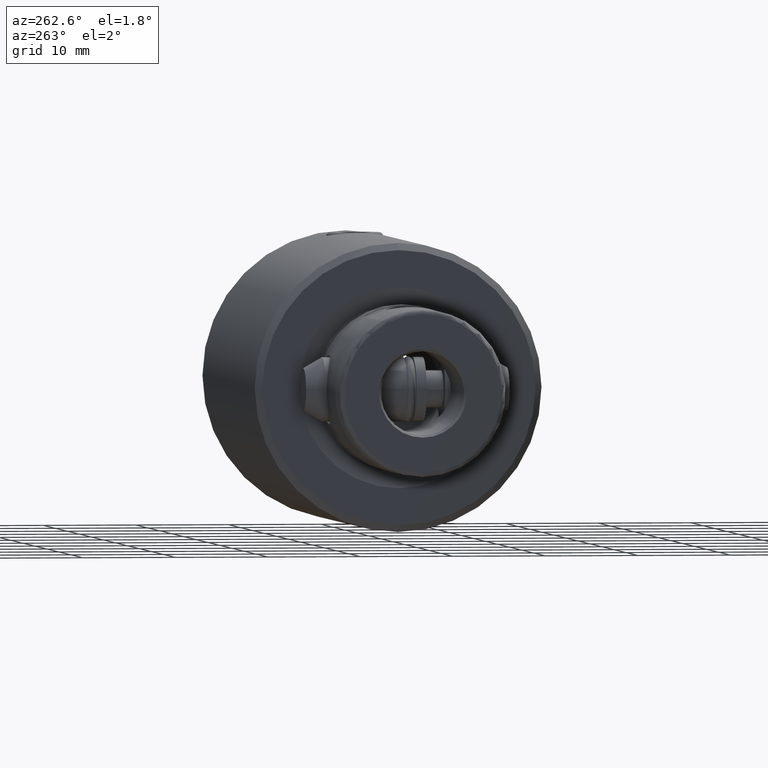
[diagram: clean part render]
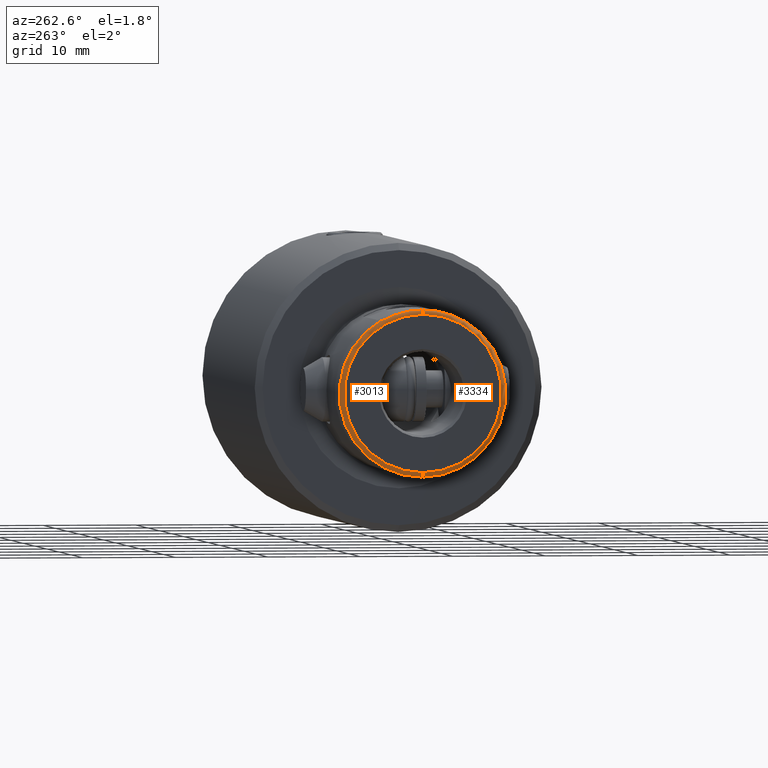
[diagram: same view with one multi-face feature highlighted, each face labeled with its STEP entity id]
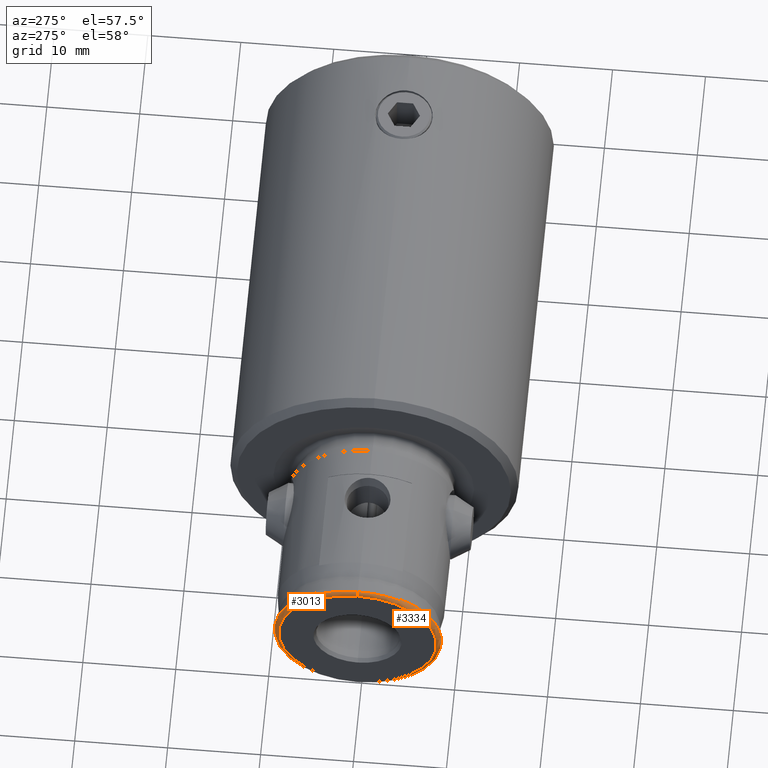
[diagram: same view with one multi-face feature highlighted, each face labeled with its STEP entity id]
A machine part, auxiliary view. The highlighted faces form ONE feature: a constant-radius fillet chain: 2 tangent blend faces with common blend radius 0.5 mm. The faces share edges in the B-rep.
A second angle (auxiliary view) of the same feature is appended — it is thin or edge-on in the first view.
Their STEP definitions:
[1] entity #3013 (Torus):
#7 = EDGE_CURVE ( 'NONE', #2380, #2242, #2147, .T. ) ;
#130 = CARTESIAN_POINT ( 'NONE',  ( -8.499999999999998224, -9.726274574535265613E-15, 65.00000000000000000 ) ) ;
#139 = CIRCLE ( 'NONE', #2624, 9.000000000000051514 ) ;
#213 = DIRECTION ( 'NONE',  ( 0.0000000000000000000, -1.723881454251954269E-16, 1.000000000000000000 ) ) ;
#329 = CARTESIAN_POINT ( 'NONE',  ( 8.500000000000044409, -1.147291893263172090E-14, 64.50000000000000000 ) ) ;
#418 = ORIENTED_EDGE ( 'NONE', *, *, #7, .T. ) ;
#509 = CARTESIAN_POINT ( 'NONE',  ( 8.500000000000044409, -1.155911300534431693E-14, 65.00000000000000000 ) ) ;
#544 = CARTESIAN_POINT ( 'NONE',  ( 8.543483812242556041, 2.702611785700421709, 64.71319679735238140 ) ) ;
#573 = DIRECTION ( 'NONE',  ( 1.888135635086342558E-20, -1.723881454251955994E-16, 1.000000000000000000 ) ) ;
#718 = CIRCLE ( 'NONE', #883, 8.500000000000044409 ) ;
#797 = AXIS2_PLACEMENT_3D ( 'NONE', #1883, #1174, #3695 ) ;
#850 = CARTESIAN_POINT ( 'NONE',  ( 8.117054869518128157, 3.801924875169973905, 64.70807553930579559 ) ) ;
#883 = AXIS2_PLACEMENT_3D ( 'NONE', #1272, #2070, #4549 ) ;
#897 = CARTESIAN_POINT ( 'NONE',  ( 7.744228634059989069, 4.500000000000010658, 64.70345613903400306 ) ) ;
#919 = CARTESIAN_POINT ( 'NONE',  ( 7.794228634059932048, 4.500000000000014211, 64.53545904333770977 ) ) ;
#936 = CARTESIAN_POINT ( 'NONE',  ( 7.772759222764672238, 4.500000000000013323, 64.63956420402892888 ) ) ;
#977 = EDGE_CURVE ( 'NONE', #3349, #3486, #3710, .T. ) ;
#1174 = DIRECTION ( 'NONE',  ( 1.888135635086342558E-20, -1.723881454251955994E-16, 1.000000000000000000 ) ) ;
#1272 = CARTESIAN_POINT ( 'NONE',  ( 1.227288162806122705E-18, -1.120522945263771041E-14, 65.00000000000000000 ) ) ;
#1293 = DIRECTION ( 'NONE',  ( 1.000000000000000000, -4.163335914195350679E-17, 0.0000000000000000000 ) ) ;
#1452 = EDGE_CURVE ( 'NONE', #4220, #3349, #2630, .T. ) ;
#1462 = CARTESIAN_POINT ( 'NONE',  ( 7.744228634059989069, 4.500000000000010658, 64.70345613903400306 ) ) ;
#1530 = ORIENTED_EDGE ( 'NONE', *, *, #3177, .F. ) ;
#1717 = CARTESIAN_POINT ( 'NONE',  ( -9.000000000000051514, -9.642153028414908008E-15, 64.50000000000000000 ) ) ;
#1883 = CARTESIAN_POINT ( 'NONE',  ( 1.217847484630691260E-18, -1.111903537992511439E-14, 64.50000000000000000 ) ) ;
#1954 = CARTESIAN_POINT ( 'NONE',  ( 8.923989505416782819, 0.7883385530806144015, 64.71764565955500359 ) ) ;
#1995 = CARTESIAN_POINT ( 'NONE',  ( 1.217847484630691260E-18, -1.111903537992511439E-14, 64.50000000000000000 ) ) ;
#2003 = CARTESIAN_POINT ( 'NONE',  ( 7.760294299790399641, 4.500000000000013323, 64.67227302975570069 ) ) ;
#2038 = CARTESIAN_POINT ( 'NONE',  ( -8.500000000000044409, -9.724202047943252807E-15, 64.50000000000000000 ) ) ;
#2070 = DIRECTION ( 'NONE',  ( 1.888135635086342558E-20, -1.723881454251955994E-16, 1.000000000000000000 ) ) ;
#2093 = ORIENTED_EDGE ( 'NONE', *, *, #2462, .F. ) ;
#2108 = CARTESIAN_POINT ( 'NONE',  ( 8.949999999999999289, 2.684290431672881742E-11, 64.71794494717703117 ) ) ;
#2147 = CIRCLE ( 'NONE', #3527, 0.5000000000000004441 ) ;
#2189 = EDGE_LOOP ( 'NONE', ( #4264, #418, #2093, #1530, #2718, #2494 ) ) ;
#2242 = VERTEX_POINT ( 'NONE', #130 ) ;
#2269 = CARTESIAN_POINT ( 'NONE',  ( 8.949999999998832223, 0.3916268937879325285, 64.71794494717704538 ) ) ;
#2378 = DIRECTION ( 'NONE',  ( 1.640980390566888090E-16, 1.000000000000000000, 1.723881454251955994E-16 ) ) ;
#2380 = VERTEX_POINT ( 'NONE', #1717 ) ;
#2462 = EDGE_CURVE ( 'NONE', #3788, #2242, #718, .T. ) ;
#2494 = ORIENTED_EDGE ( 'NONE', *, *, #1452, .F. ) ;
#2624 = AXIS2_PLACEMENT_3D ( 'NONE', #1995, #573, #1293 ) ;
#2630 = B_SPLINE_CURVE_WITH_KNOTS ( 'NONE', 3,
 ( #4131, #919, #2724, #936, #2003, #3070 ),
 .UNSPECIFIED., .F., .F.,
 ( 4, 2, 4 ),
 ( 0.003313627888758041533, 0.003418567564405850141, 0.003523507240053658750 ),
 .UNSPECIFIED. ) ;
#2637 = CARTESIAN_POINT ( 'NONE',  ( 8.949999999999999289, 2.684290431672881742E-11, 64.71794494717703117 ) ) ;
#2718 = ORIENTED_EDGE ( 'NONE', *, *, #977, .F. ) ;
#2724 = CARTESIAN_POINT ( 'NONE',  ( 7.789848050558762615, 4.500000000000014211, 64.57082413517959196 ) ) ;
#2783 = DIRECTION ( 'NONE',  ( 0.0000000000000000000, 1.723881454251954269E-16, -1.000000000000000000 ) ) ;
#2844 = DIRECTION ( 'NONE',  ( -4.163335914195348213E-17, -1.000000000000000000, -1.723881454251955994E-16 ) ) ;
#2924 = CARTESIAN_POINT ( 'NONE',  ( 7.794228634059990668, 4.500000000000010658, 64.50000000000000000 ) ) ;
#3013 = ADVANCED_FACE ( 'NONE', ( #4163 ), #3241, .T. ) ;
#3070 = CARTESIAN_POINT ( 'NONE',  ( 7.744228634059989069, 4.500000000000010658, 64.70345613903400306 ) ) ;
#3131 = CIRCLE ( 'NONE', #3433, 0.5000000000000004441 ) ;
#3177 = EDGE_CURVE ( 'NONE', #3486, #3788, #3131, .T. ) ;
#3241 = TOROIDAL_SURFACE ( 'NONE', #797, 8.499999999999998224, 0.5000000000000000000 ) ;
#3340 = CARTESIAN_POINT ( 'NONE',  ( 7.941985090305718309, 4.157475770257607728, 64.70593437811906767 ) ) ;
#3349 = VERTEX_POINT ( 'NONE', #1462 ) ;
#3374 = CARTESIAN_POINT ( 'NONE',  ( 8.821328666272730601, 1.566362988764559150, 64.71645551656496309 ) ) ;
#3433 = AXIS2_PLACEMENT_3D ( 'NONE', #329, #2844, #2783 ) ;
#3486 = VERTEX_POINT ( 'NONE', #2108 ) ;
#3527 = AXIS2_PLACEMENT_3D ( 'NONE', #2038, #2378, #213 ) ;
#3695 = DIRECTION ( 'NONE',  ( 1.000000000000000000, -4.163335914195351911E-17, -1.888135635087060568E-20 ) ) ;
#3710 = B_SPLINE_CURVE_WITH_KNOTS ( 'NONE', 3,
 ( #897, #3340, #850, #4034, #544, #4061, #3374, #1954, #2269, #2637 ),
 .UNSPECIFIED., .F., .F.,
 ( 4, 2, 2, 2, 4 ),
 ( 2.305887004527156561E-07, 0.001184955913991415227, 0.002369681239282377984, 0.003554406564573339873, 0.004739131889864301762 ),
 .UNSPECIFIED. ) ;
#3788 = VERTEX_POINT ( 'NONE', #509 ) ;
#3828 = EDGE_CURVE ( 'NONE', #4220, #2380, #139, .T. ) ;
#4034 = CARTESIAN_POINT ( 'NONE',  ( 8.418210828813476709, 3.073243133388920967, 64.71171158814941293 ) ) ;
#4061 = CARTESIAN_POINT ( 'NONE',  ( 8.745044211965932845, 1.949172081948179924, 64.71556891871901485 ) ) ;
#4131 = CARTESIAN_POINT ( 'NONE',  ( 7.794228634059990668, 4.500000000000010658, 64.50000000000000000 ) ) ;
#4163 = FACE_OUTER_BOUND ( 'NONE', #2189, .T. ) ;
#4220 = VERTEX_POINT ( 'NONE', #2924 ) ;
#4264 = ORIENTED_EDGE ( 'NONE', *, *, #3828, .T. ) ;
#4549 = DIRECTION ( 'NONE',  ( 1.000000000000000000, -4.163335914195346364E-17, 0.0000000000000000000 ) ) ;
[2] entity #3334 (Torus):
#7 = EDGE_CURVE ( 'NONE', #2380, #2242, #2147, .T. ) ;
#106 = EDGE_CURVE ( 'NONE', #2187, #1019, #1959, .T. ) ;
#130 = CARTESIAN_POINT ( 'NONE',  ( -8.499999999999998224, -9.726274574535265613E-15, 65.00000000000000000 ) ) ;
#213 = DIRECTION ( 'NONE',  ( 0.0000000000000000000, -1.723881454251954269E-16, 1.000000000000000000 ) ) ;
#298 = CARTESIAN_POINT ( 'NONE',  ( 1.227288162806122705E-18, -1.120522945263771041E-14, 65.00000000000000000 ) ) ;
#329 = CARTESIAN_POINT ( 'NONE',  ( 8.500000000000044409, -1.147291893263172090E-14, 64.50000000000000000 ) ) ;
#356 = CARTESIAN_POINT ( 'NONE',  ( 7.744228634059989069, -4.500000000000030198, 64.70345613904952131 ) ) ;
#368 = CARTESIAN_POINT ( 'NONE',  ( 1.217847484630691260E-18, -1.111903537992511439E-14, 64.50000000000000000 ) ) ;
#409 = ORIENTED_EDGE ( 'NONE', *, *, #4449, .T. ) ;
#509 = CARTESIAN_POINT ( 'NONE',  ( 8.500000000000044409, -1.155911300534431693E-14, 65.00000000000000000 ) ) ;
#543 = EDGE_CURVE ( 'NONE', #3486, #2187, #870, .T. ) ;
#580 = ORIENTED_EDGE ( 'NONE', *, *, #3278, .F. ) ;
#586 = DIRECTION ( 'NONE',  ( 1.000000000000000000, -4.163335914195350679E-17, 0.0000000000000000000 ) ) ;
#604 = ORIENTED_EDGE ( 'NONE', *, *, #3177, .T. ) ;
#712 = AXIS2_PLACEMENT_3D ( 'NONE', #298, #3531, #1760 ) ;
#870 = B_SPLINE_CURVE_WITH_KNOTS ( 'NONE', 3,
 ( #3142, #4568, #2451, #1376, #2808, #1408 ),
 .UNSPECIFIED., .F., .F.,
 ( 4, 2, 4 ),
 ( 0.004739131889864301762, 0.007111120171876726681, 0.009483108453889150732 ),
 .UNSPECIFIED. ) ;
#1019 = VERTEX_POINT ( 'NONE', #1597 ) ;
#1082 = DIRECTION ( 'NONE',  ( 1.000000000000000000, -4.163335914195351911E-17, -1.888135635087060568E-20 ) ) ;
#1111 = TOROIDAL_SURFACE ( 'NONE', #3891, 8.499999999999998224, 0.5000000000000000000 ) ;
#1151 = AXIS2_PLACEMENT_3D ( 'NONE', #1333, #4534, #586 ) ;
#1330 = CARTESIAN_POINT ( 'NONE',  ( 7.789962206753254570, -4.500000000000026645, 64.57023108674606249 ) ) ;
#1333 = CARTESIAN_POINT ( 'NONE',  ( 1.217847484630691260E-18, -1.111903537992511439E-14, 64.50000000000000000 ) ) ;
#1376 = CARTESIAN_POINT ( 'NONE',  ( 8.440477618073623844, -3.088462699125102962, 64.71198463796937972 ) ) ;
#1385 = CARTESIAN_POINT ( 'NONE',  ( 7.760325317489556340, -4.500000000000026645, 64.67221282507551905 ) ) ;
#1408 = CARTESIAN_POINT ( 'NONE',  ( 7.744228634059989069, -4.500000000000030198, 64.70345613904952131 ) ) ;
#1597 = CARTESIAN_POINT ( 'NONE',  ( 7.794228634065993866, -4.500000000000030198, 64.49999999999859313 ) ) ;
#1647 = ORIENTED_EDGE ( 'NONE', *, *, #7, .F. ) ;
#1717 = CARTESIAN_POINT ( 'NONE',  ( -9.000000000000051514, -9.642153028414908008E-15, 64.50000000000000000 ) ) ;
#1760 = DIRECTION ( 'NONE',  ( 1.000000000000000000, -4.163335914195346364E-17, 0.0000000000000000000 ) ) ;
#1959 = B_SPLINE_CURVE_WITH_KNOTS ( 'NONE', 3,
 ( #356, #1385, #2524, #1330, #4161, #4219 ),
 .UNSPECIFIED., .F., .F.,
 ( 4, 2, 4 ),
 ( 0.003300341506084325093, 0.003405687888079163284, 0.003511034270074001474 ),
 .UNSPECIFIED. ) ;
#2010 = FACE_OUTER_BOUND ( 'NONE', #3809, .T. ) ;
#2038 = CARTESIAN_POINT ( 'NONE',  ( -8.500000000000044409, -9.724202047943252807E-15, 64.50000000000000000 ) ) ;
#2108 = CARTESIAN_POINT ( 'NONE',  ( 8.949999999999999289, 2.684290431672881742E-11, 64.71794494717703117 ) ) ;
#2147 = CIRCLE ( 'NONE', #3527, 0.5000000000000004441 ) ;
#2187 = VERTEX_POINT ( 'NONE', #2579 ) ;
#2242 = VERTEX_POINT ( 'NONE', #130 ) ;
#2378 = DIRECTION ( 'NONE',  ( 1.640980390566888090E-16, 1.000000000000000000, 1.723881454251955994E-16 ) ) ;
#2380 = VERTEX_POINT ( 'NONE', #1717 ) ;
#2449 = CIRCLE ( 'NONE', #1151, 9.000000000000051514 ) ;
#2451 = CARTESIAN_POINT ( 'NONE',  ( 8.849281919723059886, -1.558715285158422281, 64.71679557122548943 ) ) ;
#2459 = CIRCLE ( 'NONE', #712, 8.500000000000044409 ) ;
#2524 = CARTESIAN_POINT ( 'NONE',  ( 7.772837029504980677, -4.500000000000027534, 64.63938358932684025 ) ) ;
#2579 = CARTESIAN_POINT ( 'NONE',  ( 7.744228634059989069, -4.500000000000030198, 64.70345613904952131 ) ) ;
#2783 = DIRECTION ( 'NONE',  ( 0.0000000000000000000, 1.723881454251954269E-16, -1.000000000000000000 ) ) ;
#2808 = CARTESIAN_POINT ( 'NONE',  ( 8.140164361329981446, -3.814219203838264960, 64.70841791580757274 ) ) ;
#2844 = DIRECTION ( 'NONE',  ( -4.163335914195348213E-17, -1.000000000000000000, -1.723881454251955994E-16 ) ) ;
#2948 = ORIENTED_EDGE ( 'NONE', *, *, #106, .F. ) ;
#3131 = CIRCLE ( 'NONE', #3433, 0.5000000000000004441 ) ;
#3142 = CARTESIAN_POINT ( 'NONE',  ( 8.949999999999999289, 2.684290431672881742E-11, 64.71794494717703117 ) ) ;
#3177 = EDGE_CURVE ( 'NONE', #3486, #3788, #3131, .T. ) ;
#3278 = EDGE_CURVE ( 'NONE', #2242, #3788, #2459, .T. ) ;
#3279 = ORIENTED_EDGE ( 'NONE', *, *, #543, .F. ) ;
#3334 = ADVANCED_FACE ( 'NONE', ( #2010 ), #1111, .T. ) ;
#3433 = AXIS2_PLACEMENT_3D ( 'NONE', #329, #2844, #2783 ) ;
#3486 = VERTEX_POINT ( 'NONE', #2108 ) ;
#3527 = AXIS2_PLACEMENT_3D ( 'NONE', #2038, #2378, #213 ) ;
#3531 = DIRECTION ( 'NONE',  ( 1.888135635086342558E-20, -1.723881454251955994E-16, 1.000000000000000000 ) ) ;
#3606 = DIRECTION ( 'NONE',  ( 1.888135635086342558E-20, -1.723881454251955994E-16, 1.000000000000000000 ) ) ;
#3788 = VERTEX_POINT ( 'NONE', #509 ) ;
#3809 = EDGE_LOOP ( 'NONE', ( #1647, #409, #2948, #3279, #604, #580 ) ) ;
#3891 = AXIS2_PLACEMENT_3D ( 'NONE', #368, #3606, #1082 ) ;
#4161 = CARTESIAN_POINT ( 'NONE',  ( 7.794228634060158534, -4.500000000000027534, 64.53516623201440439 ) ) ;
#4219 = CARTESIAN_POINT ( 'NONE',  ( 7.794228634065993866, -4.500000000000030198, 64.49999999999859313 ) ) ;
#4449 = EDGE_CURVE ( 'NONE', #2380, #1019, #2449, .T. ) ;
#4534 = DIRECTION ( 'NONE',  ( 1.888135635086342558E-20, -1.723881454251955994E-16, 1.000000000000000000 ) ) ;
#4568 = CARTESIAN_POINT ( 'NONE',  ( 8.950000000002338751, -0.7840926357021074100, 64.71794494717707380 ) ) ;